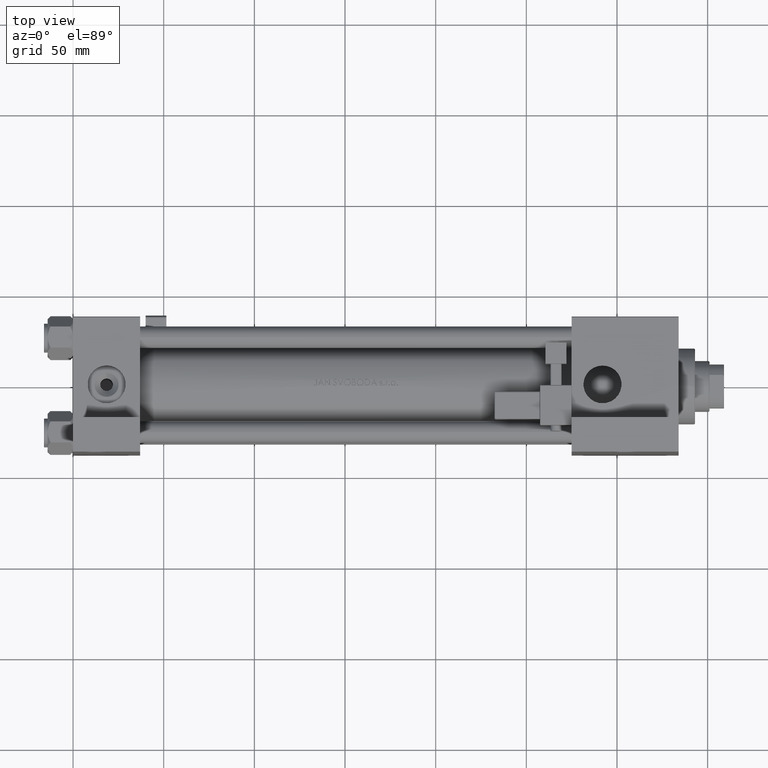
[diagram: clean part render]
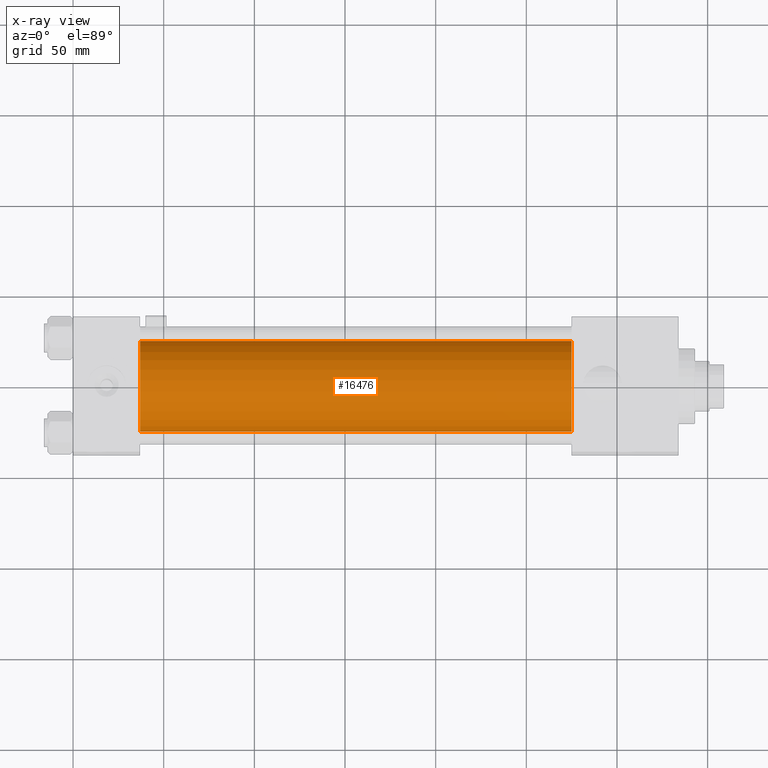
[diagram: x-ray — body ghosted, one internal face saturated and labeled with its STEP entity id]
A machine part, top view, then the same camera in x-ray: the body is ghosted and one INTERNAL B-rep face — a face not visible from any outside direction — is saturated and labeled: STEP entity #16476.
In plain terms, the highlighted cylindrical surface (partial cylindrical patch) has radius 25 mm, axis along (-1, -0, 0).
Its self-contained STEP definition (entity closure, byte-faithful):
#255 = VERTEX_POINT ( 'NONE', #39622 ) ;
#346 = DIRECTION ( 'NONE',  ( 1.000000000000000000, 0.000000000000000000, 0.000000000000000000 ) ) ;
#763 = CARTESIAN_POINT ( 'NONE',  ( 274.9999999999999432, 3.061616997868383043E-15, -25.50000000000000355 ) ) ;
#2402 = EDGE_CURVE ( 'NONE', #15838, #33860, #40350, .T. ) ;
#3509 = CARTESIAN_POINT ( 'NONE',  ( 37.00000000000000000, 0.000000000000000000, -0.5000000000000004441 ) ) ;
#3776 = DIRECTION ( 'NONE',  ( 0.000000000000000000, 0.000000000000000000, -1.000000000000000000 ) ) ;
#4027 = DIRECTION ( 'NONE',  ( 1.000000000000000000, 0.000000000000000000, 0.000000000000000000 ) ) ;
#4516 = DIRECTION ( 'NONE',  ( -1.000000000000000000, -0.000000000000000000, -0.000000000000000000 ) ) ;
#4802 = CARTESIAN_POINT ( 'NONE',  ( 274.9999999999999432, 0.000000000000000000, -0.5000000000000004441 ) ) ;
#7747 = VERTEX_POINT ( 'NONE', #26227 ) ;
#13482 = CIRCLE ( 'NONE', #33518, 25.00000000000000000 ) ;
#15838 = VERTEX_POINT ( 'NONE', #763 ) ;
#16476 = ADVANCED_FACE ( 'NONE', ( #29670 ), #41984, .F. ) ;
#16521 = AXIS2_PLACEMENT_3D ( 'NONE', #3509, #346, #3776 ) ;
#17369 = DIRECTION ( 'NONE',  ( 0.000000000000000000, 0.000000000000000000, 1.000000000000000000 ) ) ;
#18219 = CIRCLE ( 'NONE', #16521, 25.00000000000000000 ) ;
#19692 = EDGE_LOOP ( 'NONE', ( #37892, #43518, #41923, #46114 ) ) ;
#21961 = VECTOR ( 'NONE', #25826, 1000.000000000000000 ) ;
#25340 = EDGE_CURVE ( 'NONE', #255, #15838, #13482, .T. ) ;
#25826 = DIRECTION ( 'NONE',  ( -1.000000000000000000, -0.000000000000000000, -0.000000000000000000 ) ) ;
#26227 = CARTESIAN_POINT ( 'NONE',  ( 37.00000000000000000, 0.000000000000000000, 24.50000000000000000 ) ) ;
#26278 = AXIS2_PLACEMENT_3D ( 'NONE', #50360, #50107, #17369 ) ;
#27988 = EDGE_CURVE ( 'NONE', #255, #7747, #38395, .T. ) ;
#29223 = CARTESIAN_POINT ( 'NONE',  ( 274.9999999999999432, 0.000000000000000000, 24.50000000000000000 ) ) ;
#29670 = FACE_OUTER_BOUND ( 'NONE', #19692, .T. ) ;
#30176 = VECTOR ( 'NONE', #4516, 1000.000000000000000 ) ;
#33518 = AXIS2_PLACEMENT_3D ( 'NONE', #4802, #4027, #47497 ) ;
#33860 = VERTEX_POINT ( 'NONE', #37742 ) ;
#36670 = CARTESIAN_POINT ( 'NONE',  ( 274.9999999999999432, 3.061616997868383043E-15, -25.50000000000000355 ) ) ;
#37742 = CARTESIAN_POINT ( 'NONE',  ( 37.00000000000000000, 3.061616997868383043E-15, -25.50000000000000355 ) ) ;
#37892 = ORIENTED_EDGE ( 'NONE', *, *, #25340, .T. ) ;
#38395 = LINE ( 'NONE', #29223, #21961 ) ;
#39622 = CARTESIAN_POINT ( 'NONE',  ( 274.9999999999999432, 0.000000000000000000, 24.50000000000000000 ) ) ;
#40350 = LINE ( 'NONE', #36670, #30176 ) ;
#41181 = EDGE_CURVE ( 'NONE', #7747, #33860, #18219, .T. ) ;
#41923 = ORIENTED_EDGE ( 'NONE', *, *, #41181, .F. ) ;
#41984 = CYLINDRICAL_SURFACE ( 'NONE', #26278, 25.00000000000000000 ) ;
#43518 = ORIENTED_EDGE ( 'NONE', *, *, #2402, .T. ) ;
#46114 = ORIENTED_EDGE ( 'NONE', *, *, #27988, .F. ) ;
#47497 = DIRECTION ( 'NONE',  ( 0.000000000000000000, 0.000000000000000000, -1.000000000000000000 ) ) ;
#50107 = DIRECTION ( 'NONE',  ( -1.000000000000000000, -0.000000000000000000, -0.000000000000000000 ) ) ;
#50360 = CARTESIAN_POINT ( 'NONE',  ( 274.9999999999999432, 0.000000000000000000, -0.5000000000000004441 ) ) ;